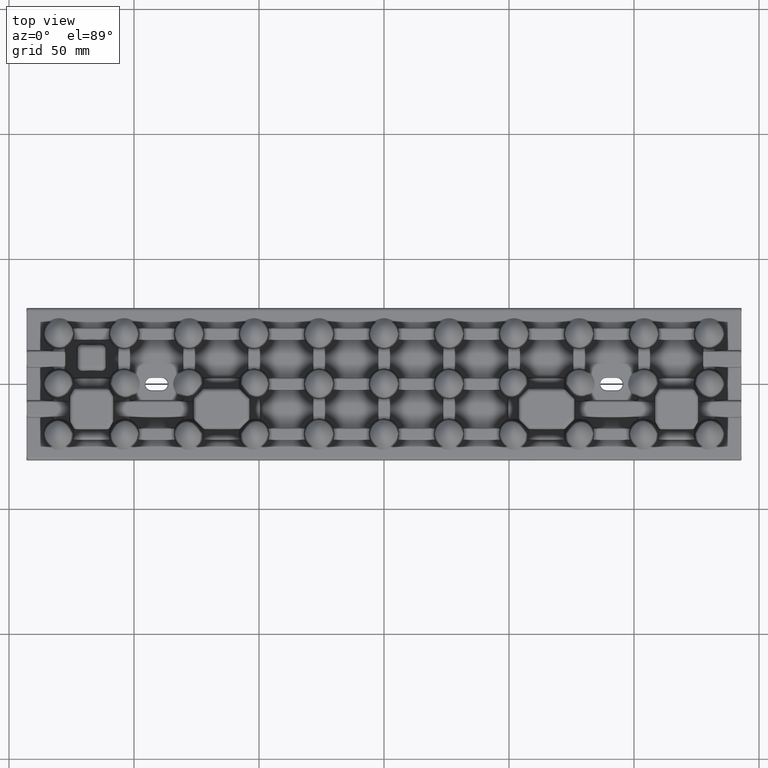
[diagram: clean part render]
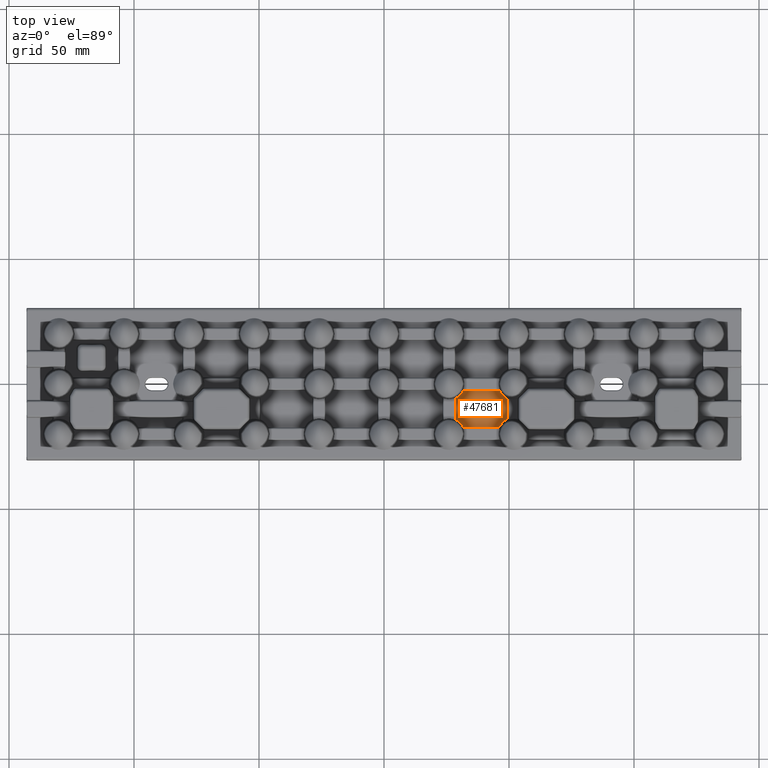
[diagram: same view with one face highlighted and labeled with its STEP entity id]
A machine part, top view. The second image highlights one B-rep face of the part: STEP entity #47681.
In plain terms, the highlighted planar face has unit normal (-0, 0, 1).
Its self-contained STEP definition (entity closure, byte-faithful):
#640 = CARTESIAN_POINT ( 'NONE',  ( 47.97042798743204600, -14.87733844304122700, 2.000000000000001300 ) ) ;
#1204 = VECTOR ( 'NONE', #30945, 1000.000000000000000 ) ;
#3034 = CARTESIAN_POINT ( 'NONE',  ( 29.38438775355166800, -5.440601997758104600, 2.000000000000000000 ) ) ;
#3065 = VERTEX_POINT ( 'NONE', #44254 ) ;
#5991 = DIRECTION ( 'NONE',  ( -0.0000000000000000000, 0.0000000000000000000, 1.000000000000000000 ) ) ;
#6598 = LINE ( 'NONE', #45866, #45559 ) ;
#10854 = VERTEX_POINT ( 'NONE', #49133 ) ;
#11558 = CARTESIAN_POINT ( 'NONE',  ( 48.91464973973214800, -14.25967778658220200, 1.999999999999999600 ) ) ;
#13976 = CARTESIAN_POINT ( 'NONE',  ( 29.96594625418575600, -5.022355105805180700, 2.000000000000073300 ) ) ;
#16159 = B_SPLINE_CURVE_WITH_KNOTS ( 'NONE', 3,
 ( #64961, #108287, #119171, #54539, #130102, #65390, #640, #76237, #11558, #87095 ),
 .UNSPECIFIED., .F., .F.,
 ( 4, 2, 2, 2, 4 ),
 ( 3.469446951953614200E-018, 0.001121988861518405200, 0.002243977723036806900, 0.003365966584555215600, 0.004487955446073625200 ),
 .UNSPECIFIED. ) ;
#16198 = EDGE_CURVE ( 'NONE', #114917, #69663, #32845, .T. ) ;
#16738 = EDGE_CURVE ( 'NONE', #10854, #69663, #105956, .T. ) ;
#18348 = B_SPLINE_CURVE_WITH_KNOTS ( 'NONE', 3,
 ( #100030, #35536, #94884, #30349, #105737, #41180, #116592, #52027 ),
 .UNSPECIFIED., .F., .F.,
 ( 4, 2, 2, 4 ),
 ( 9.511364005193116700E-018, 0.001076540399725371700, 0.002153080799450733000, 0.004306161598901469400 ),
 .UNSPECIFIED. ) ;
#19794 = CARTESIAN_POINT ( 'NONE',  ( 31.68591749716935600, -17.25857780629828400, 2.000000000000000000 ) ) ;
#23479 = CARTESIAN_POINT ( 'NONE',  ( 31.56417109729732600, -2.741422193701771500, 2.000000000000000000 ) ) ;
#23860 = ORIENTED_EDGE ( 'NONE', *, *, #32373, .T. ) ;
#24882 = CARTESIAN_POINT ( 'NONE',  ( 30.37271852204947800, -4.663536202339602500, 2.000000000000069700 ) ) ;
#26691 = VECTOR ( 'NONE', #44716, 1000.000000000000000 ) ;
#30349 = CARTESIAN_POINT ( 'NONE',  ( 47.02616737363543100, -3.990758746549350800, 2.000000000000000400 ) ) ;
#30701 = CARTESIAN_POINT ( 'NONE',  ( 30.97383089542265800, -16.00924355256733000, 2.000000000000001800 ) ) ;
#30945 = DIRECTION ( 'NONE',  ( 1.000000000000000000, 3.304235192336801100E-016, 0.0000000000000000000 ) ) ;
#32373 = EDGE_CURVE ( 'NONE', #127934, #64706, #16159, .T. ) ;
#32845 = B_SPLINE_CURVE_WITH_KNOTS ( 'NONE', 3,
 ( #56946, #89033, #3034, #78605, #13976, #89486, #24882, #100265, #35762, #111133, #46617, #122057 ),
 .UNSPECIFIED., .F., .F.,
 ( 4, 2, 2, 2, 2, 4 ),
 ( 4.336808689942017700E-018, 0.001074085383375042700, 0.001611128075062566700, 0.002148170766750091000, 0.003222256150125139000, 0.004296341533500188000 ),
 .UNSPECIFIED. ) ;
#33188 = VECTOR ( 'NONE', #77663, 1000.000000000000000 ) ;
#34027 = B_SPLINE_CURVE_WITH_KNOTS ( 'NONE', 3,
 ( #19794, #84377, #95237, #30701, #106064, #41522, #116939, #52360 ),
 .UNSPECIFIED., .F., .F.,
 ( 4, 2, 2, 4 ),
 ( 0.0000000000000000000, 0.001076539212269838300, 0.002153078424539682200, 0.004306156849079385100 ),
 .UNSPECIFIED. ) ;
#35536 = CARTESIAN_POINT ( 'NONE',  ( 46.46046483679801000, -3.074421158446666100, 1.999999999999999100 ) ) ;
#35762 = CARTESIAN_POINT ( 'NONE',  ( 30.97238154371733300, -3.992682463999114100, 1.999999999999999100 ) ) ;
#35887 = AXIS2_PLACEMENT_3D ( 'NONE', #81028, #5991, #81495 ) ;
#37478 = ORIENTED_EDGE ( 'NONE', *, *, #55391, .T. ) ;
#41180 = CARTESIAN_POINT ( 'NONE',  ( 48.00907550948045400, -5.058263676520843100, 2.000000000000000400 ) ) ;
#41522 = CARTESIAN_POINT ( 'NONE',  ( 29.99092290981968700, -14.94174063425509800, 1.999999999999999600 ) ) ;
#42305 = FACE_OUTER_BOUND ( 'NONE', #110053, .T. ) ;
#44254 = CARTESIAN_POINT ( 'NONE',  ( 28.74142219370183000, -14.23179208399003800, 2.000000000000000000 ) ) ;
#44716 = DIRECTION ( 'NONE',  ( -1.000000000000000000, -2.271661694731551500E-016, 0.0000000000000000000 ) ) ;
#45559 = VECTOR ( 'NONE', #131795, 1000.000000000000000 ) ;
#45866 = CARTESIAN_POINT ( 'NONE',  ( 28.74142219370183000, -14.43582890270260300, 2.000000000000000000 ) ) ;
#46617 = CARTESIAN_POINT ( 'NONE',  ( 31.53985770200895500, -3.073684243417179400, 2.000000000000000400 ) ) ;
#47681 = ADVANCED_FACE ( 'NONE', ( #42305 ), #124514, .T. ) ;
#49133 = CARTESIAN_POINT ( 'NONE',  ( 46.31408161886457700, -2.741422193701768000, 2.000000000000000000 ) ) ;
#49418 = VERTEX_POINT ( 'NONE', #132239 ) ;
#52027 = CARTESIAN_POINT ( 'NONE',  ( 49.25857780629813500, -5.768212342269598600, 2.000000000000000000 ) ) ;
#52360 = CARTESIAN_POINT ( 'NONE',  ( 28.74142219370183000, -14.23179208399003800, 2.000000000000000000 ) ) ;
#54453 = CARTESIAN_POINT ( 'NONE',  ( 31.68591749716830800, -2.741422193701771500, 2.000000000000000000 ) ) ;
#54539 = CARTESIAN_POINT ( 'NONE',  ( 46.93150479917586900, -15.95705928240410600, 2.000000000000001800 ) ) ;
#55175 = ORIENTED_EDGE ( 'NONE', *, *, #73229, .F. ) ;
#55391 = EDGE_CURVE ( 'NONE', #64706, #123658, #119197, .T. ) ;
#56946 = CARTESIAN_POINT ( 'NONE',  ( 28.74142219370183300, -5.768207916009361100, 2.000000000000000000 ) ) ;
#60132 = CARTESIAN_POINT ( 'NONE',  ( 46.19330319997659000, -17.25857780629828000, 2.000000000000000000 ) ) ;
#61269 = ORIENTED_EDGE ( 'NONE', *, *, #75541, .T. ) ;
#64706 = VERTEX_POINT ( 'NONE', #88499 ) ;
#64961 = CARTESIAN_POINT ( 'NONE',  ( 46.19330319997659000, -17.25857780629828000, 2.000000000000000000 ) ) ;
#65390 = CARTESIAN_POINT ( 'NONE',  ( 47.68600756331882500, -15.12124200537529500, 1.999999999999999100 ) ) ;
#66806 = CARTESIAN_POINT ( 'NONE',  ( 49.25857780629813500, -5.564171097297423400, 2.000000000000000000 ) ) ;
#67750 = EDGE_CURVE ( 'NONE', #49418, #127934, #138200, .T. ) ;
#69663 = VERTEX_POINT ( 'NONE', #54453 ) ;
#73229 = EDGE_CURVE ( 'NONE', #10854, #123658, #18348, .T. ) ;
#75541 = EDGE_CURVE ( 'NONE', #114917, #3065, #6598, .T. ) ;
#76237 = CARTESIAN_POINT ( 'NONE',  ( 48.58779508046662000, -14.44442165669697100, 2.000000000000000900 ) ) ;
#77663 = DIRECTION ( 'NONE',  ( 0.0000000000000000000, 1.000000000000000000, -0.0000000000000000000 ) ) ;
#78060 = ORIENTED_EDGE ( 'NONE', *, *, #110446, .F. ) ;
#78605 = CARTESIAN_POINT ( 'NONE',  ( 29.82413268988133800, -5.132195336541121500, 1.999999999999999600 ) ) ;
#78845 = ORIENTED_EDGE ( 'NONE', *, *, #67750, .T. ) ;
#81028 = CARTESIAN_POINT ( 'NONE',  ( 0.0000000000000000000, 0.0000000000000000000, 2.000000000000000000 ) ) ;
#81495 = DIRECTION ( 'NONE',  ( 1.000000000000000000, 0.0000000000000000000, 0.0000000000000000000 ) ) ;
#84377 = CARTESIAN_POINT ( 'NONE',  ( 31.53953400331398200, -16.92557939520336400, 2.000000000000000000 ) ) ;
#86951 = CARTESIAN_POINT ( 'NONE',  ( 28.74142219370183300, -5.768207916009361100, 2.000000000000000000 ) ) ;
#87095 = CARTESIAN_POINT ( 'NONE',  ( 49.25857780629813500, -14.10473258521168000, 2.000000000000000000 ) ) ;
#88499 = CARTESIAN_POINT ( 'NONE',  ( 49.25857780629813500, -14.10473258521168000, 2.000000000000000000 ) ) ;
#89033 = CARTESIAN_POINT ( 'NONE',  ( 29.07217656165914500, -5.618090448059305700, 2.000000000000000900 ) ) ;
#89486 = CARTESIAN_POINT ( 'NONE',  ( 30.23990278352856000, -4.788400185583111800, 2.000000000000074200 ) ) ;
#93972 = ORIENTED_EDGE ( 'NONE', *, *, #16198, .F. ) ;
#94884 = CARTESIAN_POINT ( 'NONE',  ( 46.63123235152212900, -3.391493271073599200, 1.999999999999999600 ) ) ;
#95237 = CARTESIAN_POINT ( 'NONE',  ( 31.36876626013454600, -16.60850785381538600, 2.000000000000001800 ) ) ;
#95496 = CARTESIAN_POINT ( 'NONE',  ( 46.43582890270251800, -17.25857780629828000, 2.000000000000000000 ) ) ;
#100030 = CARTESIAN_POINT ( 'NONE',  ( 46.31408161886457700, -2.741422193701768000, 2.000000000000000000 ) ) ;
#100265 = CARTESIAN_POINT ( 'NONE',  ( 30.74946515307163600, -4.273470592468905600, 2.000000000000070200 ) ) ;
#105737 = CARTESIAN_POINT ( 'NONE',  ( 47.25120888539547800, -4.274456355544141500, 2.000000000000000400 ) ) ;
#105956 = LINE ( 'NONE', #23479, #26691 ) ;
#106064 = CARTESIAN_POINT ( 'NONE',  ( 30.74878935311596400, -15.72554655679057200, 2.000000000000000000 ) ) ;
#108287 = CARTESIAN_POINT ( 'NONE',  ( 46.34429917666788200, -16.91325671723116400, 1.999999999999999600 ) ) ;
#110053 = EDGE_LOOP ( 'NONE', ( #78845, #23860, #37478, #55175, #128416, #93972, #61269, #78060 ) ) ;
#110446 = EDGE_CURVE ( 'NONE', #49418, #3065, #34027, .T. ) ;
#111133 = CARTESIAN_POINT ( 'NONE',  ( 31.36742071048351800, -3.393805111211603000, 1.999999999999999100 ) ) ;
#114917 = VERTEX_POINT ( 'NONE', #86951 ) ;
#116592 = CARTESIAN_POINT ( 'NONE',  ( 48.59534421445354700, -5.467195367694472500, 2.000000000000002200 ) ) ;
#116939 = CARTESIAN_POINT ( 'NONE',  ( 29.40465470909188300, -14.53280938116825800, 2.000000000000002700 ) ) ;
#119171 = CARTESIAN_POINT ( 'NONE',  ( 46.52088342461588200, -16.58314278691334600, 2.000000000000001800 ) ) ;
#119197 = LINE ( 'NONE', #66806, #33188 ) ;
#122057 = CARTESIAN_POINT ( 'NONE',  ( 31.68591749716830800, -2.741422193701771500, 2.000000000000000000 ) ) ;
#123658 = VERTEX_POINT ( 'NONE', #134894 ) ;
#124514 = PLANE ( 'NONE',  #35887 ) ;
#127934 = VERTEX_POINT ( 'NONE', #60132 ) ;
#128416 = ORIENTED_EDGE ( 'NONE', *, *, #16738, .T. ) ;
#130102 = CARTESIAN_POINT ( 'NONE',  ( 47.16720428239191400, -15.65953300582868800, 1.999999999999998700 ) ) ;
#131795 = DIRECTION ( 'NONE',  ( -4.625929269271473100E-016, -1.000000000000000000, 0.0000000000000000000 ) ) ;
#132239 = CARTESIAN_POINT ( 'NONE',  ( 31.68591749716935600, -17.25857780629828400, 2.000000000000000000 ) ) ;
#134894 = CARTESIAN_POINT ( 'NONE',  ( 49.25857780629813500, -5.768212342269598600, 2.000000000000000000 ) ) ;
#138200 = LINE ( 'NONE', #95496, #1204 ) ;